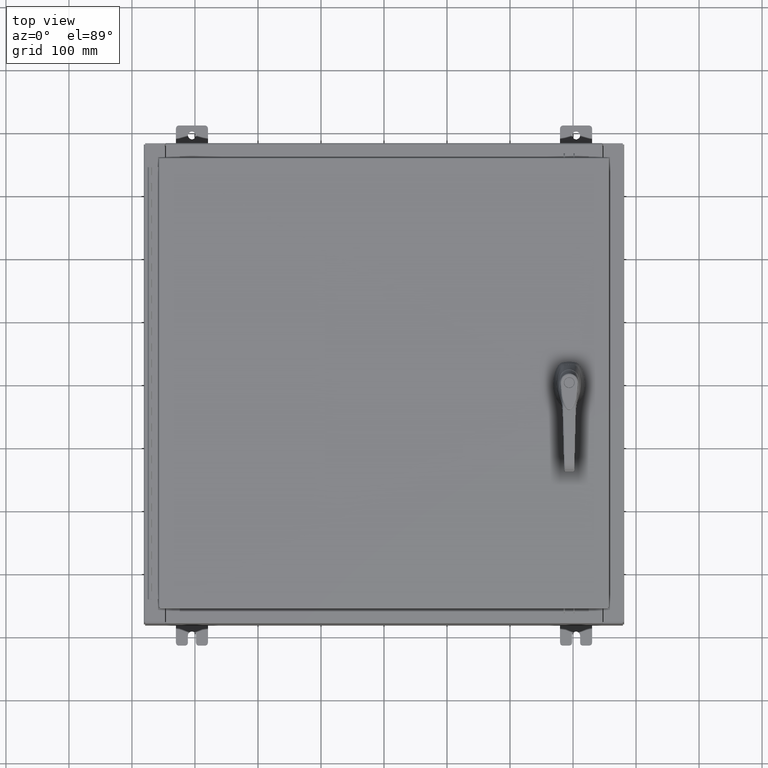
[diagram: clean part render]
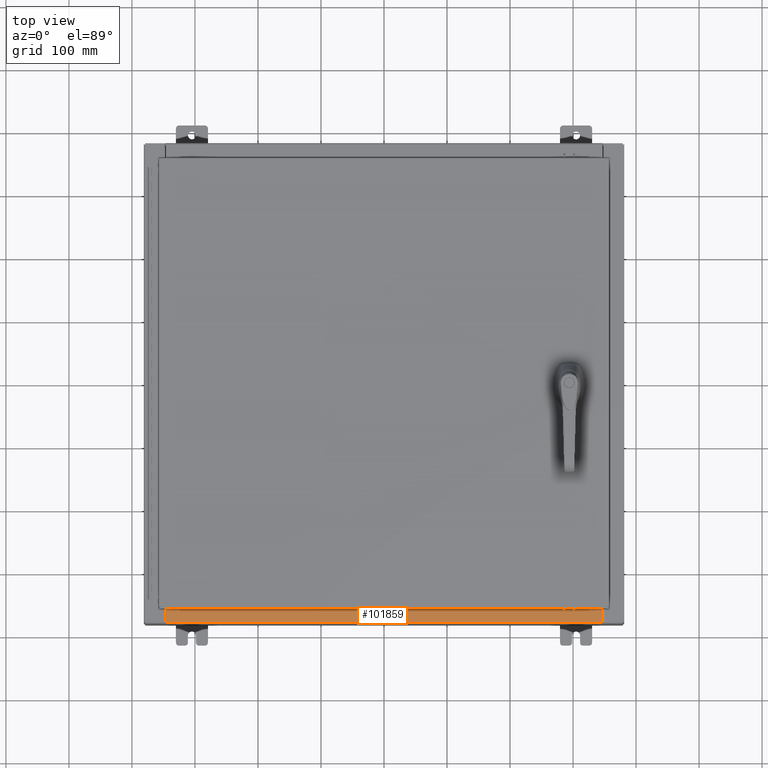
[diagram: same view with one face highlighted and labeled with its STEP entity id]
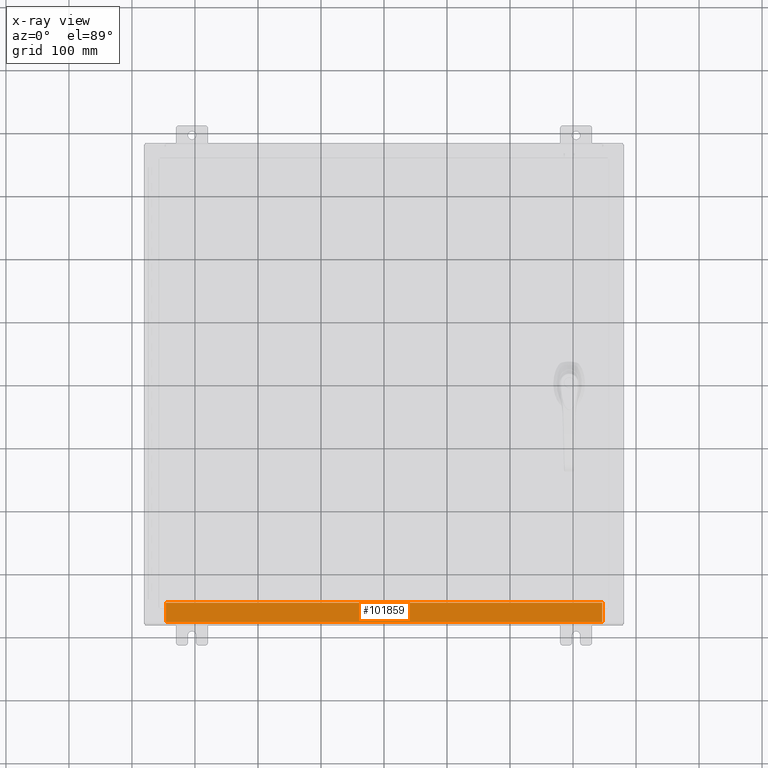
[diagram: x-ray of the same camera — body ghosted, the highlighted face saturated]
A machine part, top view. The second image highlights one B-rep face of the part: STEP entity #101859.
The next image is the same camera in x-ray: the body ghosted, the highlighted face saturated — about 0% of this face is hidden behind the body in this view.
In plain terms, the highlighted planar face has unit normal (-0, -0, 1).
Its self-contained STEP definition (entity closure, byte-faithful):
#1526 = CARTESIAN_POINT ( 'NONE',  ( 13.63720000000000400, -1.300299999999999800, 4.000000000000004400 ) ) ;
#2256 = DIRECTION ( 'NONE',  ( 0.0000000000000000000, -1.000000000000000000, 3.566381192773190000E-015 ) ) ;
#17724 = VECTOR ( 'NONE', #73783, 39.37007874015748100 ) ;
#19635 = VECTOR ( 'NONE', #40351, 39.37007874015748100 ) ;
#24615 = VERTEX_POINT ( 'NONE', #32816 ) ;
#25937 = ORIENTED_EDGE ( 'NONE', *, *, #83400, .F. ) ;
#26834 = ORIENTED_EDGE ( 'NONE', *, *, #38347, .F. ) ;
#31093 = CARTESIAN_POINT ( 'NONE',  ( -1.756834753793995900E-018, -0.08770000000000000000, 4.000000000000000900 ) ) ;
#31827 = ORIENTED_EDGE ( 'NONE', *, *, #33843, .F. ) ;
#32816 = CARTESIAN_POINT ( 'NONE',  ( -13.63719999999999800, -0.08770000000000000000, 4.000000000000000000 ) ) ;
#33015 = CARTESIAN_POINT ( 'NONE',  ( 13.63720000000000400, -0.08769999999999965300, 4.000000000000000000 ) ) ;
#33843 = EDGE_CURVE ( 'NONE', #48356, #57006, #68614, .T. ) ;
#37128 = DIRECTION ( 'NONE',  ( -1.000000000000000000, 0.0000000000000000000, 0.0000000000000000000 ) ) ;
#37649 = FACE_OUTER_BOUND ( 'NONE', #113960, .T. ) ;
#38193 = DIRECTION ( 'NONE',  ( -0.0000000000000000000, -1.000000000000000000, 3.566381192773190000E-015 ) ) ;
#38347 = EDGE_CURVE ( 'NONE', #78784, #24615, #110231, .T. ) ;
#40351 = DIRECTION ( 'NONE',  ( -1.000000000000000000, 2.003232330437526000E-017, -7.144290108027600900E-032 ) ) ;
#43040 = AXIS2_PLACEMENT_3D ( 'NONE', #112879, #57489, #2256 ) ;
#47109 = CARTESIAN_POINT ( 'NONE',  ( -13.63719999999999800, -0.07469999999999973900, 4.000000000000000000 ) ) ;
#48356 = VERTEX_POINT ( 'NONE', #33015 ) ;
#57006 = VERTEX_POINT ( 'NONE', #115807 ) ;
#57489 = DIRECTION ( 'NONE',  ( 0.0000000000000000000, 3.566381192773190000E-015, 1.000000000000000000 ) ) ;
#62854 = LINE ( 'NONE', #31093, #19635 ) ;
#62973 = EDGE_CURVE ( 'NONE', #48356, #24615, #62854, .T. ) ;
#64302 = LINE ( 'NONE', #101769, #110622 ) ;
#68614 = LINE ( 'NONE', #1526, #114922 ) ;
#73783 = DIRECTION ( 'NONE',  ( -0.0000000000000000000, 1.000000000000000000, -3.566381192773190000E-015 ) ) ;
#78784 = VERTEX_POINT ( 'NONE', #115489 ) ;
#83400 = EDGE_CURVE ( 'NONE', #57006, #78784, #64302, .T. ) ;
#91297 = ORIENTED_EDGE ( 'NONE', *, *, #62973, .T. ) ;
#101769 = CARTESIAN_POINT ( 'NONE',  ( 13.63720000000000400, -1.287299999999999900, 4.000000000000003600 ) ) ;
#101859 = ADVANCED_FACE ( 'NONE', ( #37649 ), #111701, .T. ) ;
#110231 = LINE ( 'NONE', #47109, #17724 ) ;
#110622 = VECTOR ( 'NONE', #37128, 39.37007874015748100 ) ;
#111701 = PLANE ( 'NONE',  #43040 ) ;
#112879 = CARTESIAN_POINT ( 'NONE',  ( 0.0000000000000000000, 1.425992975200418500E-014, 4.000000000000000000 ) ) ;
#113960 = EDGE_LOOP ( 'NONE', ( #26834, #25937, #31827, #91297 ) ) ;
#114922 = VECTOR ( 'NONE', #38193, 39.37007874015748100 ) ;
#115489 = CARTESIAN_POINT ( 'NONE',  ( -13.63719999999999800, -1.287299999999999200, 4.000000000000004400 ) ) ;
#115807 = CARTESIAN_POINT ( 'NONE',  ( 13.63720000000000400, -1.287299999999999900, 4.000000000000004400 ) ) ;